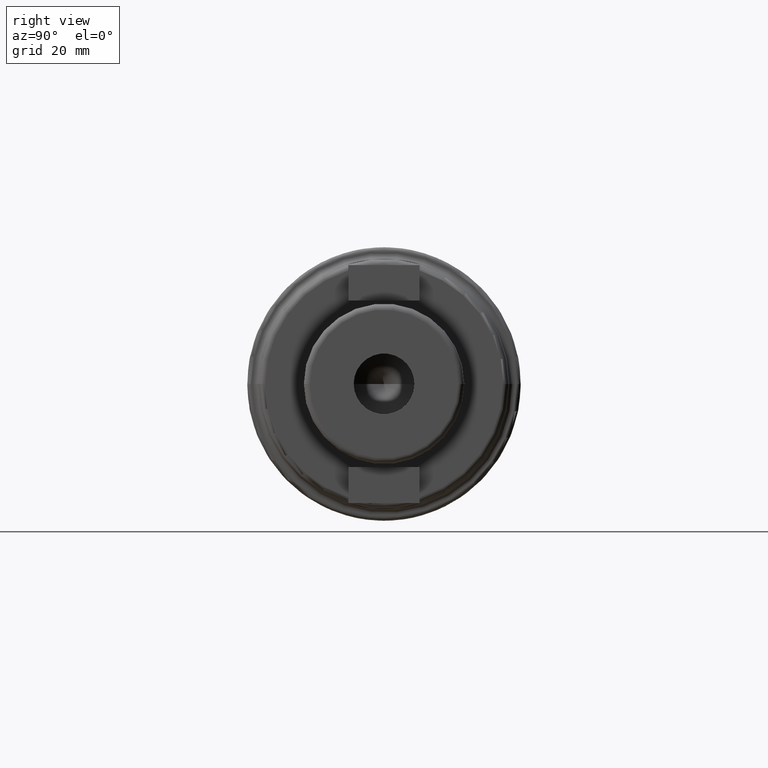
[diagram: clean part render]
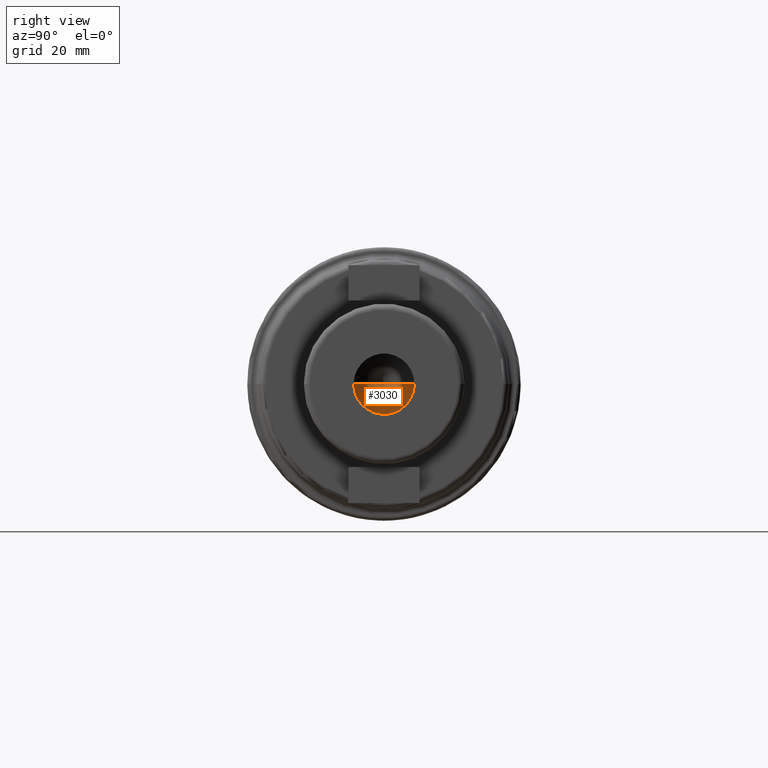
[diagram: same view with one face highlighted and labeled with its STEP entity id]
A machine part, right view. The second image highlights one B-rep face of the part: STEP entity #3030.
In plain terms, the highlighted conical surface has half-angle 59 deg.
Its self-contained STEP definition (entity closure, byte-faithful):
#1005=CARTESIAN_POINT('',(2.2E1,0.E0,0.E0));
#1006=DIRECTION('',(1.E0,0.E0,0.E0));
#1007=DIRECTION('',(0.E0,-1.E0,0.E0));
#1008=AXIS2_PLACEMENT_3D('',#1005,#1006,#1007);
#1023=DIRECTION('',(5.150380749101E-1,-8.571673007021E-1,0.E0));
#1024=VECTOR('',#1023,5.949830325798E0);
#1025=CARTESIAN_POINT('',(1.893561084296E1,0.E0,0.E0));
#1026=LINE('',#1025,#1024);
#1027=DIRECTION('',(5.150380749101E-1,8.571673007021E-1,0.E0));
#1028=VECTOR('',#1027,5.949830325798E0);
#1029=CARTESIAN_POINT('',(1.893561084296E1,0.E0,0.E0));
#1030=LINE('',#1029,#1028);
#1591=CARTESIAN_POINT('',(1.893561084296E1,0.E0,0.E0));
#1592=CARTESIAN_POINT('',(2.2E1,-5.1E0,0.E0));
#1593=VERTEX_POINT('',#1591);
#1594=VERTEX_POINT('',#1592);
#1595=CARTESIAN_POINT('',(2.2E1,5.1E0,0.E0));
#1596=VERTEX_POINT('',#1595);
#3020=CARTESIAN_POINT('',(2.046780542148E1,0.E0,0.E0));
#3021=DIRECTION('',(1.E0,0.E0,0.E0));
#3022=DIRECTION('',(0.E0,-1.E0,0.E0));
#3023=AXIS2_PLACEMENT_3D('',#3020,#3021,#3022);
#3024=CONICAL_SURFACE('',#3023,2.55E0,5.9E1);
#3025=ORIENTED_EDGE('',*,*,#3012,.F.);
#3026=ORIENTED_EDGE('',*,*,#3015,.T.);
#3027=ORIENTED_EDGE('',*,*,#2987,.F.);
#3028=EDGE_LOOP('',(#3025,#3026,#3027));
#3029=FACE_OUTER_BOUND('',#3028,.F.);
#3030=ADVANCED_FACE('',(#3029),#3024,.F.);
#1009=CIRCLE('',#1008,5.1E0);
#2987=EDGE_CURVE('',#1594,#1596,#1009,.T.);
#3012=EDGE_CURVE('',#1593,#1594,#1026,.T.);
#3015=EDGE_CURVE('',#1593,#1596,#1030,.T.);